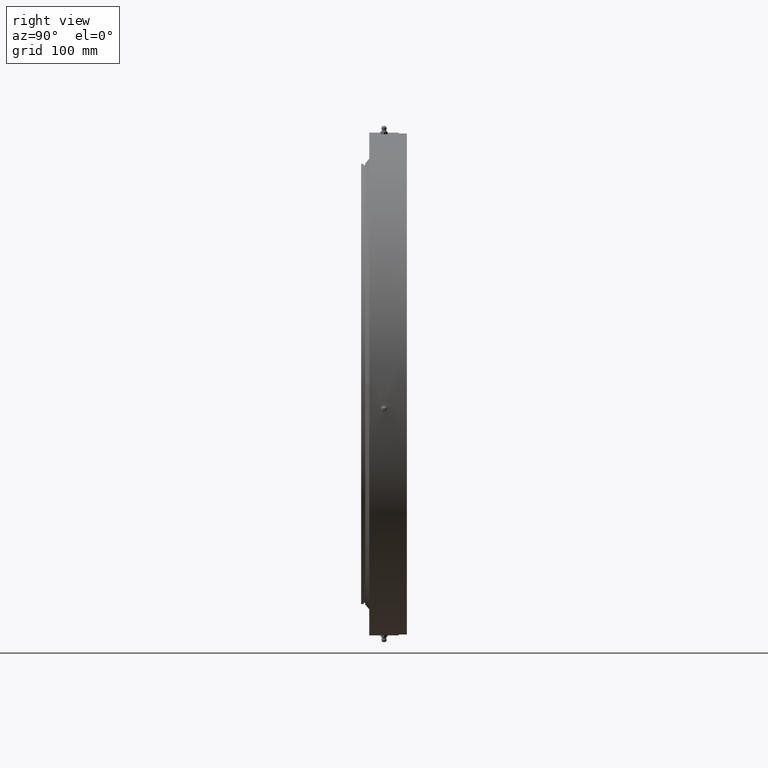
[diagram: clean part render]
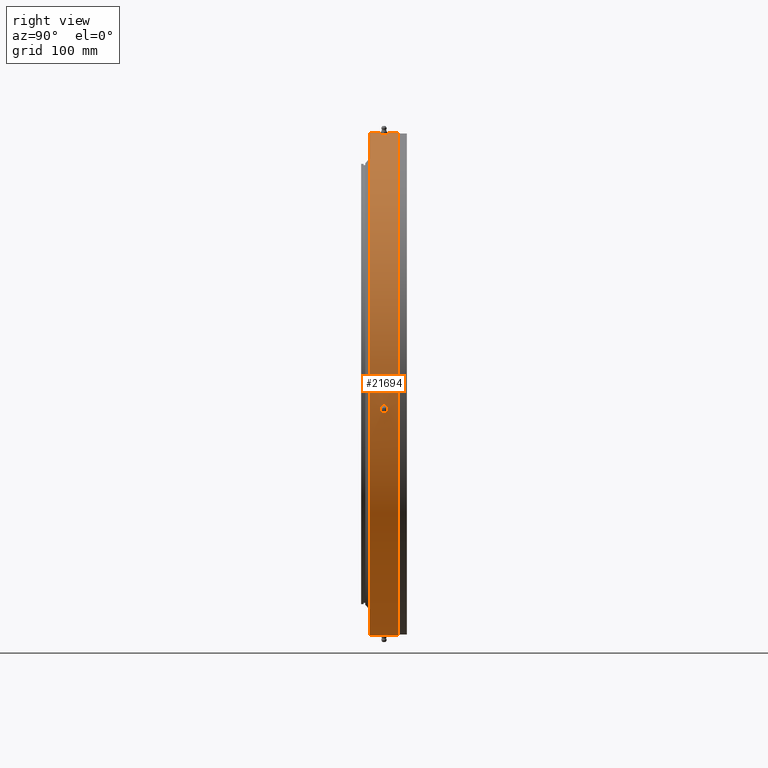
[diagram: same view with one face highlighted and labeled with its STEP entity id]
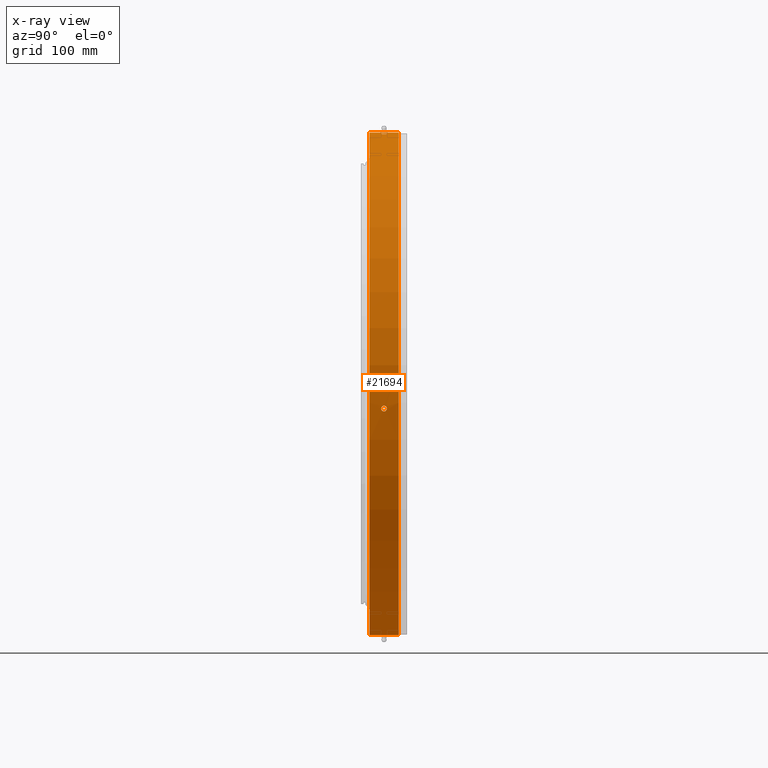
[diagram: x-ray of the same camera — body ghosted, the highlighted face saturated]
A machine part, right view. The second image highlights one B-rep face of the part: STEP entity #21694.
The next image is the same camera in x-ray: the body ghosted, the highlighted face saturated — about 0% of this face is hidden behind the body in this view.
In plain terms, the highlighted cylindrical surface (partial cylindrical patch) has radius 308 mm, axis along (0, -1, -0).
Its self-contained STEP definition (entity closure, byte-faithful):
#45 = CARTESIAN_POINT ( 'NONE',  ( 306.4040624369974400, -3.320200858430234300, -31.31445816682088100 ) ) ;
#84 = CARTESIAN_POINT ( 'NONE',  ( 306.3607494494857000, -3.144457866304795100, -31.73540554217675000 ) ) ;
#104 = CARTESIAN_POINT ( 'NONE',  ( 306.4714598602750500, -3.477013169166888400, -30.64790901979020900 ) ) ;
#172 = CARTESIAN_POINT ( 'NONE',  ( 306.4266199670361700, -3.387788332490439600, -31.09303156257203700 ) ) ;
#229 = CARTESIAN_POINT ( 'NONE',  ( 2.112655002379531500E-015, -17.99999999999987600, -6.289591239694367800E-016 ) ) ;
#231 = CARTESIAN_POINT ( 'NONE',  ( 306.1663096679923800, 0.9088845004940864200, -33.55879653811285100 ) ) ;
#235 = CARTESIAN_POINT ( 'NONE',  ( 306.5392283157591500, -3.500192934624059200, -29.96255590384803800 ) ) ;
#267 = CARTESIAN_POINT ( 'NONE',  ( 306.4939859768547300, -3.499804596878452600, -30.42186405748162400 ) ) ;
#289 = CARTESIAN_POINT ( 'NONE',  ( 306.6042078706227600, -3.389071983906032100, -29.29009589290622600 ) ) ;
#318 = CARTESIAN_POINT ( 'NONE',  ( 306.4946425096220000, 3.500080694542107900, -30.41523017895045900 ) ) ;
#324 = CARTESIAN_POINT ( 'NONE',  ( 306.5613550995169000, -3.477621237995774300, -29.73525787572017600 ) ) ;
#358 = CARTESIAN_POINT ( 'NONE',  ( 306.6649898803431700, -3.146594747246898900, -28.64662353635017300 ) ) ;
#378 = CARTESIAN_POINT ( 'NONE',  ( 306.6252128359196300, -3.322148246947680400, -29.06929499783857600 ) ) ;
#403 = CARTESIAN_POINT ( 'NONE',  ( 306.8246116050567000, 1.128303312779390200, -26.88243726378075800 ) ) ;
#407 = CARTESIAN_POINT ( 'NONE',  ( 306.7185049163924200, -2.785758881016970000, -28.06768420430231700 ) ) ;
#438 = CARTESIAN_POINT ( 'NONE',  ( 306.6836159299259600, -3.039194158425434700, -28.44636839537045600 ) ) ;
#465 = CARTESIAN_POINT ( 'NONE',  ( 306.7639761713932100, -2.315195117686211100, -27.56608533834132000 ) ) ;
#538 = CARTESIAN_POINT ( 'NONE',  ( 306.7348680209413500, -2.638066794423830500, -27.88811355290162900 ) ) ;
#557 = CARTESIAN_POINT ( 'NONE',  ( 306.1540445795810100, -4.705302749671518600E-009, -33.67047649742869500 ) ) ;
#596 = CARTESIAN_POINT ( 'NONE',  ( 306.7995655485480000, -1.757443031469376300, -27.16694567322144800 ) ) ;
#636 = FACE_OUTER_BOUND ( 'NONE', #26210, .T. ) ;
#677 = CARTESIAN_POINT ( 'NONE',  ( 306.7768973580731400, -2.139169396805410600, -27.42173600164247600 ) ) ;
#710 = CARTESIAN_POINT ( 'NONE',  ( 306.8321433145627600, -0.9217518475116226500, -26.79676139966284900 ) ) ;
#760 = CARTESIAN_POINT ( 'NONE',  ( 306.1564673209808800, -0.4553541139783626200, -33.64846978282276500 ) ) ;
#810 = CARTESIAN_POINT ( 'NONE',  ( 31.09303156257524500, -3.387788332490484500, 306.4266199670358300 ) ) ;
#966 = CARTESIAN_POINT ( 'NONE',  ( 306.8091688628245500, -1.553253985867789600, -27.05811430666536000 ) ) ;
#1016 = CARTESIAN_POINT ( 'NONE',  ( 306.8401645618878900, -4.705304059338285900E-009, -26.70418341072331700 ) ) ;
#1033 = CARTESIAN_POINT ( 'NONE',  ( 31.73540554217994700, -3.144457866304839500, 306.3607494494853000 ) ) ;
#1043 = CARTESIAN_POINT ( 'NONE',  ( 306.8401645618880000, -0.4624058684740535700, -26.70418341072332400 ) ) ;
#1769 = CARTESIAN_POINT ( 'NONE',  ( 33.64846978282597000, -0.4553541139784056400, 306.1564673209805400 ) ) ;
#1979 = VERTEX_POINT ( 'NONE', #20901 ) ;
#2284 = CARTESIAN_POINT ( 'NONE',  ( 306.1925769424451600, 1.551321002645137800, -33.31836645306972900 ) ) ;
#2377 = CARTESIAN_POINT ( 'NONE',  ( 306.5614003410974000, 3.477719691461760300, -29.73480891760793200 ) ) ;
#2477 = CARTESIAN_POINT ( 'NONE',  ( 306.8381991639859600, 0.4586450523872532300, -26.72679387351295300 ) ) ;
#2690 = CARTESIAN_POINT ( 'NONE',  ( 32.49267609729212600, -2.634578800328817700, 306.2813281851205700 ) ) ;
#3193 = CARTESIAN_POINT ( 'NONE',  ( 26.70418341072652500, -0.4624058684740972600, 306.8401645618876000 ) ) ;
#3726 = CIRCLE ( 'NONE', #14445, 308.0000000000000000 ) ;
#3857 = EDGE_CURVE ( 'NONE', #12473, #20716, #26082, .T. ) ;
#4116 = ORIENTED_EDGE ( 'NONE', *, *, #21564, .T. ) ;
#4314 = CARTESIAN_POINT ( 'NONE',  ( 306.2316497794614100, 2.134966687998963900, -32.95743829058192600 ) ) ;
#4411 = CARTESIAN_POINT ( 'NONE',  ( 306.6255751279085800, 3.320722332250880500, -29.06546120678746100 ) ) ;
#4776 = CYLINDRICAL_SURFACE ( 'NONE', #25778, 308.0000000000000000 ) ;
#5049 = CARTESIAN_POINT ( 'NONE',  ( 33.55953459587336600, -0.9064373021002255500, 306.1662287694329100 ) ) ;
#5517 = CARTESIAN_POINT ( 'NONE',  ( 32.95735346520780200, -2.135341746113323900, 306.2316594288395200 ) ) ;
#5597 = B_SPLINE_CURVE_WITH_KNOTS ( 'NONE', 3,
 ( #8581, #8558, #8707, #8617, #8932, #8742, #9101, #9073, #9272, #9192, #9359, #9325, #9527, #9412, #9615, #9582, #9697, #9668, #9810, #9749, #9843, #23330, #19587, #21863, #11204, #18071, #16361, #19872, #19843, #19936, #19897, #19789, #19758, #19704 ),
 .UNSPECIFIED., .F., .F.,
 ( 4, 2, 2, 2, 2, 2, 2, 2, 2, 2, 2, 2, 2, 2, 2, 2, 4 ),
 ( 7.685633421706196100E-019, 0.0006839180255758674300, 0.001367836051151734200, 0.002051754076727601100, 0.002735672102303467500, 0.003419590127879334400, 0.004103508153455201300, 0.004787426179031067800, 0.005471344204606934200, 0.006155262230182811100, 0.006839180255758687100, 0.007523098281334563900, 0.008207016306910439000, 0.008890934332486315900, 0.009574852358062192800, 0.01025877038363806800, 0.01094268840921394500 ),
 .UNSPECIFIED. ) ;
#5727 = DIRECTION ( 'NONE',  ( 1.173697223544192200E-016, -1.000000000000000000, -3.494217355385783800E-017 ) ) ;
#5803 = CARTESIAN_POINT ( 'NONE',  ( -5.481655599296589900E-014, 18.00000000000008500, -308.0000000000000000 ) ) ;
#6365 = CARTESIAN_POINT ( 'NONE',  ( 306.2818074443936800, 2.638804789441276700, -32.48816911038332500 ) ) ;
#6435 = CARTESIAN_POINT ( 'NONE',  ( 1.921008958160694200E-014, -17.99999999999988600, 308.0000000000000000 ) ) ;
#6456 = CARTESIAN_POINT ( 'NONE',  ( 306.6839096873544000, 3.037489673266212900, -28.44320917986085100 ) ) ;
#6695 = FACE_BOUND ( 'NONE', #24572, .T. ) ;
#7031 = CARTESIAN_POINT ( 'NONE',  ( 27.05811430666857100, -1.553253985867833800, 306.8091688628240900 ) ) ;
#7759 = VERTEX_POINT ( 'NONE', #23390 ) ;
#7973 = CARTESIAN_POINT ( 'NONE',  ( 26.79676139966607100, -0.9217518475116687200, 306.8321433145624700 ) ) ;
#8241 = VERTEX_POINT ( 'NONE', #21698 ) ;
#8414 = CARTESIAN_POINT ( 'NONE',  ( 306.3399821335220800, 3.036910292944401400, -31.93511104547231500 ) ) ;
#8523 = CARTESIAN_POINT ( 'NONE',  ( 306.7350024376872300, 2.636754389741908800, -27.88663411988858700 ) ) ;
#8558 = CARTESIAN_POINT ( 'NONE',  ( 26.70418341072653200, 0.2312551401253853400, 306.8401645618875500 ) ) ;
#8581 = CARTESIAN_POINT ( 'NONE',  ( 26.70418341072652900, -4.705347809034695600E-009, 306.8401645618876000 ) ) ;
#8617 = CARTESIAN_POINT ( 'NONE',  ( 26.81538325131135300, 0.9060106631863861200, 306.8304698005732700 ) ) ;
#8707 = CARTESIAN_POINT ( 'NONE',  ( 26.72679387351617200, 0.4586450523872083700, 306.8381991639858500 ) ) ;
#8742 = CARTESIAN_POINT ( 'NONE',  ( 27.05748745574788200, 1.552199377077467100, 306.8092242622719800 ) ) ;
#8932 = CARTESIAN_POINT ( 'NONE',  ( 26.88243726378398100, 1.128303312779345600, 306.8246116050564800 ) ) ;
#8988 = CARTESIAN_POINT ( 'NONE',  ( 306.3399663359679200, -3.036882670198375300, -31.93526649188424600 ) ) ;
#9023 = CARTESIAN_POINT ( 'NONE',  ( 306.3002659919059200, -2.782416042074728600, -32.31382481101949400 ) ) ;
#9044 = CARTESIAN_POINT ( 'NONE',  ( 30.42186405748483200, -3.499804596878497900, 306.4939859768544500 ) ) ;
#9073 = CARTESIAN_POINT ( 'NONE',  ( 27.41765933823023700, 2.133733264266259900, 306.7772613677923900 ) ) ;
#9101 = CARTESIAN_POINT ( 'NONE',  ( 27.16460422820142600, 1.753246319129948800, 306.7997725113812600 ) ) ;
#9192 = CARTESIAN_POINT ( 'NONE',  ( 27.88663411989178800, 2.636754389741862600, 306.7350024376867200 ) ) ;
#9269 = CARTESIAN_POINT ( 'NONE',  ( 26.70418341072652900, -4.705347809034695600E-009, 306.8401645618876000 ) ) ;
#9272 = CARTESIAN_POINT ( 'NONE',  ( 27.56494094894662400, 2.313875409423536300, 306.7640789164623200 ) ) ;
#9325 = CARTESIAN_POINT ( 'NONE',  ( 28.44320917986405600, 3.037489673266165800, 306.6839096873541700 ) ) ;
#9359 = CARTESIAN_POINT ( 'NONE',  ( 28.06214998792083300, 2.781635794741351900, 306.7190120413571900 ) ) ;
#9412 = CARTESIAN_POINT ( 'NONE',  ( 29.06546120679066900, 3.320722332250833000, 306.6255751279081800 ) ) ;
#9527 = CARTESIAN_POINT ( 'NONE',  ( 28.64608862540167400, 3.146204392110422800, 306.6650387053432500 ) ) ;
#9582 = CARTESIAN_POINT ( 'NONE',  ( 29.73480891761112900, 3.477719691461716800, 306.5614003410970000 ) ) ;
#9590 = VECTOR ( 'NONE', #14259, 1000.000000000000000 ) ;
#9615 = CARTESIAN_POINT ( 'NONE',  ( 29.28504489855852100, 3.387877180266382700, 306.6046920478397100 ) ) ;
#9668 = CARTESIAN_POINT ( 'NONE',  ( 30.41523017895367800, 3.500080694542062200, 306.4946425096217100 ) ) ;
#9697 = CARTESIAN_POINT ( 'NONE',  ( 29.96085895162008200, 3.499918856285860100, 306.5393923214772900 ) ) ;
#9749 = CARTESIAN_POINT ( 'NONE',  ( 31.09260883058081500, 3.387954094253890200, 306.4266634242153500 ) ) ;
#9810 = CARTESIAN_POINT ( 'NONE',  ( 30.64595411906113400, 3.477323552654427300, 306.4716559118008400 ) ) ;
#9843 = CARTESIAN_POINT ( 'NONE',  ( 31.30967423376022300, 3.321848024583941200, 306.4045515236026600 ) ) ;
#9933 = CARTESIAN_POINT ( 'NONE',  ( -5.221521485795728300E-014, -22.16364734299515900, -308.0000000000000000 ) ) ;
#9964 = CARTESIAN_POINT ( 'NONE',  ( 306.2813281851209100, -2.634578800328774200, -32.49267609728892100 ) ) ;
#10013 = VECTOR ( 'NONE', #12331, 1000.000000000000000 ) ;
#10081 = DIRECTION ( 'NONE',  ( 5.551115123125782700E-017, -3.379331446708065600E-017, 1.000000000000000000 ) ) ;
#10406 = CARTESIAN_POINT ( 'NONE',  ( 306.1540445795810100, -4.705302749671518600E-009, -33.67047649742869500 ) ) ;
#10424 = B_SPLINE_CURVE_WITH_KNOTS ( 'NONE', 3,
 ( #20776, #11231, #1769, #5049, #18154, #18680, #25403, #5517, #24598, #2690, #18535, #20397, #1033, #17132, #810, #18777, #9044, #23412, #16427, #14338, #16538, #14614, #11857, #23325, #11589, #18325, #17297, #18587, #7031, #7973, #3193, #9269 ),
 .UNSPECIFIED., .F., .F.,
 ( 4, 2, 2, 2, 2, 2, 2, 2, 2, 2, 2, 2, 2, 2, 2, 4 ),
 ( 0.01094268840921394500, 0.01162645201930553200, 0.01231021562939712100, 0.01299397923948870800, 0.01367774284958029500, 0.01436150645967188300, 0.01504527006976347100, 0.01572903367985505800, 0.01641279728994664600, 0.01709656090003823500, 0.01778032451012982000, 0.01846408812022140900, 0.01914785173031299800, 0.01983161534040458300, 0.02051537895049616900, 0.02188290617067934600 ),
 .UNSPECIFIED. ) ;
#10490 = CARTESIAN_POINT ( 'NONE',  ( 306.4045515236031700, 3.321848024583984800, -31.30967423375701500 ) ) ;
#10555 = CARTESIAN_POINT ( 'NONE',  ( 306.2471423964213400, -2.311675905303210800, -32.81331694344717000 ) ) ;
#10585 = CARTESIAN_POINT ( 'NONE',  ( 306.7772613677929000, 2.133733264266306900, -27.41765933822704000 ) ) ;
#10592 = CARTESIAN_POINT ( 'NONE',  ( 306.2316594288398600, -2.135341746113276900, -32.95735346520459800 ) ) ;
#11204 = CARTESIAN_POINT ( 'NONE',  ( 32.48816911038652200, 2.638804789441229600, 306.2818074443932200 ) ) ;
#11231 = CARTESIAN_POINT ( 'NONE',  ( 33.67047649743189900, -0.2283792525665546700, 306.1540445795806700 ) ) ;
#11589 = CARTESIAN_POINT ( 'NONE',  ( 27.88811355290484100, -2.638066794423872700, 306.7348680209410600 ) ) ;
#11835 = CARTESIAN_POINT ( 'NONE',  ( 306.1540445795810700, -0.2283792525665113100, -33.67047649742869500 ) ) ;
#11857 = CARTESIAN_POINT ( 'NONE',  ( 28.44636839537366800, -3.039194158425481400, 306.6836159299256800 ) ) ;
#11972 = CARTESIAN_POINT ( 'NONE',  ( 306.1540445795810100, -4.705302749671518600E-009, -33.67047649742869500 ) ) ;
#12331 = DIRECTION ( 'NONE',  ( 1.173697223544192200E-016, -1.000000000000000000, -3.494217355385783800E-017 ) ) ;
#12437 = CARTESIAN_POINT ( 'NONE',  ( 306.1565493739284400, 0.4604155606401903500, -33.64772319567377000 ) ) ;
#12473 = VERTEX_POINT ( 'NONE', #13596 ) ;
#12522 = CARTESIAN_POINT ( 'NONE',  ( 306.4716559118011200, 3.477323552654472600, -30.64595411905792900 ) ) ;
#12616 = CARTESIAN_POINT ( 'NONE',  ( 306.8092242622722100, 1.552199377077511800, -27.05748745574466700 ) ) ;
#12999 = CARTESIAN_POINT ( 'NONE',  ( 306.1735545633198400, -1.127691353490242900, -33.49271685798704100 ) ) ;
#13141 = CARTESIAN_POINT ( 'NONE',  ( 306.1662287694333000, -0.9064373021001823600, -33.55953459587018300 ) ) ;
#13584 = DIRECTION ( 'NONE',  ( 5.551115123125782700E-017, -3.379331446708065600E-017, 1.000000000000000000 ) ) ;
#13596 = CARTESIAN_POINT ( 'NONE',  ( 1.709743457922740800E-014, 18.00000000000002800, 308.0000000000000000 ) ) ;
#14259 = DIRECTION ( 'NONE',  ( 1.173697223544192200E-016, -1.000000000000000000, -3.494217355385783800E-017 ) ) ;
#14338 = CARTESIAN_POINT ( 'NONE',  ( 29.29009589290943800, -3.389071983906078300, 306.6042078706225300 ) ) ;
#14445 = AXIS2_PLACEMENT_3D ( 'NONE', #16171, #23170, #22976 ) ;
#14459 = CARTESIAN_POINT ( 'NONE',  ( 306.1735203446153800, 1.127095132318254100, -33.49303147733223800 ) ) ;
#14554 = CARTESIAN_POINT ( 'NONE',  ( 306.5393923214776900, 3.499918856285906700, -29.96085895161687400 ) ) ;
#14614 = CARTESIAN_POINT ( 'NONE',  ( 28.64662353635339200, -3.146594747246940700, 306.6649898803428900 ) ) ;
#14639 = CARTESIAN_POINT ( 'NONE',  ( 306.8304698005734400, 0.9060106631864303100, -26.81538325130813000 ) ) ;
#14712 = ORIENTED_EDGE ( 'NONE', *, *, #21273, .T. ) ;
#14730 = CARTESIAN_POINT ( 'NONE',  ( 306.8401645618879500, 0.2312551401254299100, -26.70418341072331700 ) ) ;
#15634 = VERTEX_POINT ( 'NONE', #21046 ) ;
#15805 = ORIENTED_EDGE ( 'NONE', *, *, #17614, .T. ) ;
#15809 = B_SPLINE_CURVE_WITH_KNOTS ( 'NONE', 3,
 ( #11972, #11835, #760, #13141, #12999, #21949, #16847, #10592, #10555, #9964, #9023, #8988, #84, #45, #172, #104, #267, #235, #324, #289, #378, #358, #438, #407, #538, #465, #677, #596, #966, #710, #1043, #1016 ),
 .UNSPECIFIED., .F., .F.,
 ( 4, 2, 2, 2, 2, 2, 2, 2, 2, 2, 2, 2, 2, 2, 2, 4 ),
 ( 0.01094268840921394500, 0.01162645201930553200, 0.01231021562939712100, 0.01299397923948870800, 0.01367774284958029500, 0.01436150645967188300, 0.01504527006976347100, 0.01572903367985505800, 0.01641279728994664600, 0.01709656090003823500, 0.01778032451012982000, 0.01846408812022140900, 0.01914785173031299800, 0.01983161534040458300, 0.02051537895049617200, 0.02188290617067935000 ),
 .UNSPECIFIED. ) ;
#16099 = CARTESIAN_POINT ( 'NONE',  ( 2.601341135008604100E-015, -22.16364734299516900, -7.744460120454373600E-016 ) ) ;
#16171 = CARTESIAN_POINT ( 'NONE',  ( -2.112655002379552800E-015, 18.00000000000005700, 6.289591239694430900E-016 ) ) ;
#16173 = VERTEX_POINT ( 'NONE', #557 ) ;
#16361 = CARTESIAN_POINT ( 'NONE',  ( 32.95743829058511700, 2.134966687998918600, 306.2316497794610700 ) ) ;
#16427 = CARTESIAN_POINT ( 'NONE',  ( 29.73525787572338800, -3.477621237995819600, 306.5613550995167900 ) ) ;
#16487 = CARTESIAN_POINT ( 'NONE',  ( 306.2044205767145400, 1.755854945625511300, -33.20946980315653000 ) ) ;
#16518 = CARTESIAN_POINT ( 'NONE',  ( 1.969877571423601400E-014, -22.16364734299518000, 308.0000000000000000 ) ) ;
#16538 = CARTESIAN_POINT ( 'NONE',  ( 29.06929499784178700, -3.322148246947722600, 306.6252128359193400 ) ) ;
#16573 = CARTESIAN_POINT ( 'NONE',  ( 306.6046920478399900, 3.387877180266426300, -29.28504489855531600 ) ) ;
#16847 = CARTESIAN_POINT ( 'NONE',  ( 306.2041605539273500, -1.751991760893790700, -33.21187202546742200 ) ) ;
#16848 = EDGE_CURVE ( 'NONE', #1979, #20716, #17936, .T. ) ;
#17009 = ORIENTED_EDGE ( 'NONE', *, *, #3857, .T. ) ;
#17132 = CARTESIAN_POINT ( 'NONE',  ( 31.31445816682408500, -3.320200858430278200, 306.4040624369970400 ) ) ;
#17267 = ORIENTED_EDGE ( 'NONE', *, *, #21165, .F. ) ;
#17297 = CARTESIAN_POINT ( 'NONE',  ( 27.42173600164569400, -2.139169396805454100, 306.7768973580729200 ) ) ;
#17614 = EDGE_CURVE ( 'NONE', #7759, #15634, #10424, .T. ) ;
#17729 = ORIENTED_EDGE ( 'NONE', *, *, #23403, .F. ) ;
#17936 = CIRCLE ( 'NONE', #21359, 308.0000000000000000 ) ;
#18071 = CARTESIAN_POINT ( 'NONE',  ( 32.81315193744553200, 2.312150383497720200, 306.2471612333404200 ) ) ;
#18154 = CARTESIAN_POINT ( 'NONE',  ( 33.49271685799024600, -1.127691353490286600, 306.1735545633195000 ) ) ;
#18189 = DIRECTION ( 'NONE',  ( 1.173697223544192200E-016, -1.000000000000000000, -3.494217355385783800E-017 ) ) ;
#18325 = CARTESIAN_POINT ( 'NONE',  ( 27.56608533834452500, -2.315195117686252000, 306.7639761713928700 ) ) ;
#18535 = CARTESIAN_POINT ( 'NONE',  ( 32.31382481102271200, -2.782416042074769900, 306.3002659919056300 ) ) ;
#18536 = CARTESIAN_POINT ( 'NONE',  ( 306.2471612333408200, 2.312150383497766800, -32.81315193744231400 ) ) ;
#18587 = CARTESIAN_POINT ( 'NONE',  ( 27.16694567322466700, -1.757443031469420000, 306.7995655485477800 ) ) ;
#18618 = CARTESIAN_POINT ( 'NONE',  ( 306.6650387053435300, 3.146204392110470300, -28.64608862539845900 ) ) ;
#18680 = CARTESIAN_POINT ( 'NONE',  ( 33.31942976899755100, -1.548905644597795800, 306.1924610377211000 ) ) ;
#18777 = CARTESIAN_POINT ( 'NONE',  ( 30.64790901979340600, -3.477013169166933300, 306.4714598602747600 ) ) ;
#19587 = CARTESIAN_POINT ( 'NONE',  ( 31.93511104547551600, 3.036910292944358800, 306.3399821335218000 ) ) ;
#19613 = ORIENTED_EDGE ( 'NONE', *, *, #20228, .T. ) ;
#19704 = CARTESIAN_POINT ( 'NONE',  ( 33.67047649743190600, -4.705346605199645200E-009, 306.1540445795806700 ) ) ;
#19758 = CARTESIAN_POINT ( 'NONE',  ( 33.67047649743192000, 0.2284308184249145300, 306.1540445795807300 ) ) ;
#19789 = CARTESIAN_POINT ( 'NONE',  ( 33.64772319567699600, 0.4604155606401496600, 306.1565493739282700 ) ) ;
#19843 = CARTESIAN_POINT ( 'NONE',  ( 33.31836645307292600, 1.551321002645092500, 306.1925769424445900 ) ) ;
#19872 = CARTESIAN_POINT ( 'NONE',  ( 33.20946980315974200, 1.755854945625466800, 306.2044205767142600 ) ) ;
#19897 = CARTESIAN_POINT ( 'NONE',  ( 33.55879653811607000, 0.9088845004940462300, 306.1663096679920400 ) ) ;
#19936 = CARTESIAN_POINT ( 'NONE',  ( 33.49303147733543500, 1.127095132318209500, 306.1735203446151000 ) ) ;
#20067 = B_SPLINE_CURVE_WITH_KNOTS ( 'NONE', 3,
 ( #24784, #14730, #2477, #14639, #403, #12616, #24701, #10585, #22681, #8523, #20658, #6456, #18618, #4411, #16573, #2377, #14554, #318, #12522, #24601, #10490, #22591, #8414, #20579, #6365, #18536, #4314, #16487, #2284, #14459, #231, #12437, #24514, #10406 ),
 .UNSPECIFIED., .F., .F.,
 ( 4, 2, 2, 2, 2, 2, 2, 2, 2, 2, 2, 2, 2, 2, 2, 2, 4 ),
 ( 1.303536453131876100E-018, 0.0006839180255758669900, 0.001367836051151732700, 0.002051754076727598500, 0.002735672102303464500, 0.003419590127879330500, 0.004103508153455197800, 0.004787426179031063400, 0.005471344204606930700, 0.006155262230182806700, 0.006839180255758683600, 0.007523098281334560400, 0.008207016306910437300, 0.008890934332486314200, 0.009574852358062189300, 0.01025877038363806800, 0.01094268840921394500 ),
 .UNSPECIFIED. ) ;
#20228 = EDGE_CURVE ( 'NONE', #8241, #16173, #20067, .T. ) ;
#20397 = CARTESIAN_POINT ( 'NONE',  ( 31.93526649188745700, -3.036882670198417500, 306.3399663359675700 ) ) ;
#20579 = CARTESIAN_POINT ( 'NONE',  ( 306.3004197982742200, 2.783475192935584100, -32.31236299706945700 ) ) ;
#20602 = EDGE_LOOP ( 'NONE', ( #19613, #14712 ) ) ;
#20658 = CARTESIAN_POINT ( 'NONE',  ( 306.7190120413574200, 2.781635794741398100, -28.06214998791762500 ) ) ;
#20716 = VERTEX_POINT ( 'NONE', #6435 ) ;
#20776 = CARTESIAN_POINT ( 'NONE',  ( 33.67047649743190600, -4.705346605199645200E-009, 306.1540445795806700 ) ) ;
#20901 = CARTESIAN_POINT ( 'NONE',  ( -5.481655599296589900E-014, -17.99999999999986900, -308.0000000000000000 ) ) ;
#20995 = LINE ( 'NONE', #9933, #9590 ) ;
#21046 = CARTESIAN_POINT ( 'NONE',  ( 26.70418341072652900, -4.705347809034695600E-009, 306.8401645618876000 ) ) ;
#21165 = EDGE_CURVE ( 'NONE', #23151, #1979, #20995, .T. ) ;
#21273 = EDGE_CURVE ( 'NONE', #16173, #8241, #15809, .T. ) ;
#21359 = AXIS2_PLACEMENT_3D ( 'NONE', #229, #5727, #10081 ) ;
#21564 = EDGE_CURVE ( 'NONE', #15634, #7759, #5597, .T. ) ;
#21694 = ADVANCED_FACE ( 'NONE', ( #636, #26281, #6695 ), #4776, .T. ) ;
#21698 = CARTESIAN_POINT ( 'NONE',  ( 306.8401645618878900, -4.705304059338285900E-009, -26.70418341072331700 ) ) ;
#21863 = CARTESIAN_POINT ( 'NONE',  ( 32.31236299707266800, 2.783475192935541900, 306.3004197982737700 ) ) ;
#21949 = CARTESIAN_POINT ( 'NONE',  ( 306.1924610377214400, -1.548905644597752500, -33.31942976899434000 ) ) ;
#22591 = CARTESIAN_POINT ( 'NONE',  ( 306.3611833988107900, 3.146548806230237400, -31.73121809014705600 ) ) ;
#22681 = CARTESIAN_POINT ( 'NONE',  ( 306.7640789164627200, 2.313875409423581200, -27.56494094894342700 ) ) ;
#22959 = ORIENTED_EDGE ( 'NONE', *, *, #16848, .F. ) ;
#22976 = DIRECTION ( 'NONE',  ( -5.551115123125783900E-017, 9.011550524554842000E-017, -1.000000000000000000 ) ) ;
#23151 = VERTEX_POINT ( 'NONE', #5803 ) ;
#23170 = DIRECTION ( 'NONE',  ( -1.173697223544192200E-016, 1.000000000000000000, 8.822830751849692900E-017 ) ) ;
#23325 = CARTESIAN_POINT ( 'NONE',  ( 28.06768420430553600, -2.785758881017017500, 306.7185049163920200 ) ) ;
#23330 = CARTESIAN_POINT ( 'NONE',  ( 31.73121809015027500, 3.146548806230194700, 306.3611833988104500 ) ) ;
#23390 = CARTESIAN_POINT ( 'NONE',  ( 33.67047649743190600, -4.705346605199645200E-009, 306.1540445795806700 ) ) ;
#23403 = EDGE_CURVE ( 'NONE', #12473, #23151, #3726, .T. ) ;
#23412 = CARTESIAN_POINT ( 'NONE',  ( 29.96255590385125000, -3.500192934624103600, 306.5392283157586900 ) ) ;
#24514 = CARTESIAN_POINT ( 'NONE',  ( 306.1540445795810100, 0.2284308184249573500, -33.67047649742869500 ) ) ;
#24572 = EDGE_LOOP ( 'NONE', ( #4116, #15805 ) ) ;
#24598 = CARTESIAN_POINT ( 'NONE',  ( 32.81331694345037400, -2.311675905303253800, 306.2471423964210500 ) ) ;
#24601 = CARTESIAN_POINT ( 'NONE',  ( 306.4266634242156900, 3.387954094253935500, -31.09260883057760300 ) ) ;
#24701 = CARTESIAN_POINT ( 'NONE',  ( 306.7997725113814900, 1.753246319129994700, -27.16460422819821100 ) ) ;
#24784 = CARTESIAN_POINT ( 'NONE',  ( 306.8401645618878900, -4.705304059338285900E-009, -26.70418341072331700 ) ) ;
#25403 = CARTESIAN_POINT ( 'NONE',  ( 33.21187202547063300, -1.751991760893837800, 306.2041605539271800 ) ) ;
#25778 = AXIS2_PLACEMENT_3D ( 'NONE', #16099, #18189, #13584 ) ;
#26082 = LINE ( 'NONE', #16518, #10013 ) ;
#26210 = EDGE_LOOP ( 'NONE', ( #17267, #17729, #17009, #22959 ) ) ;
#26281 = FACE_BOUND ( 'NONE', #20602, .T. ) ;